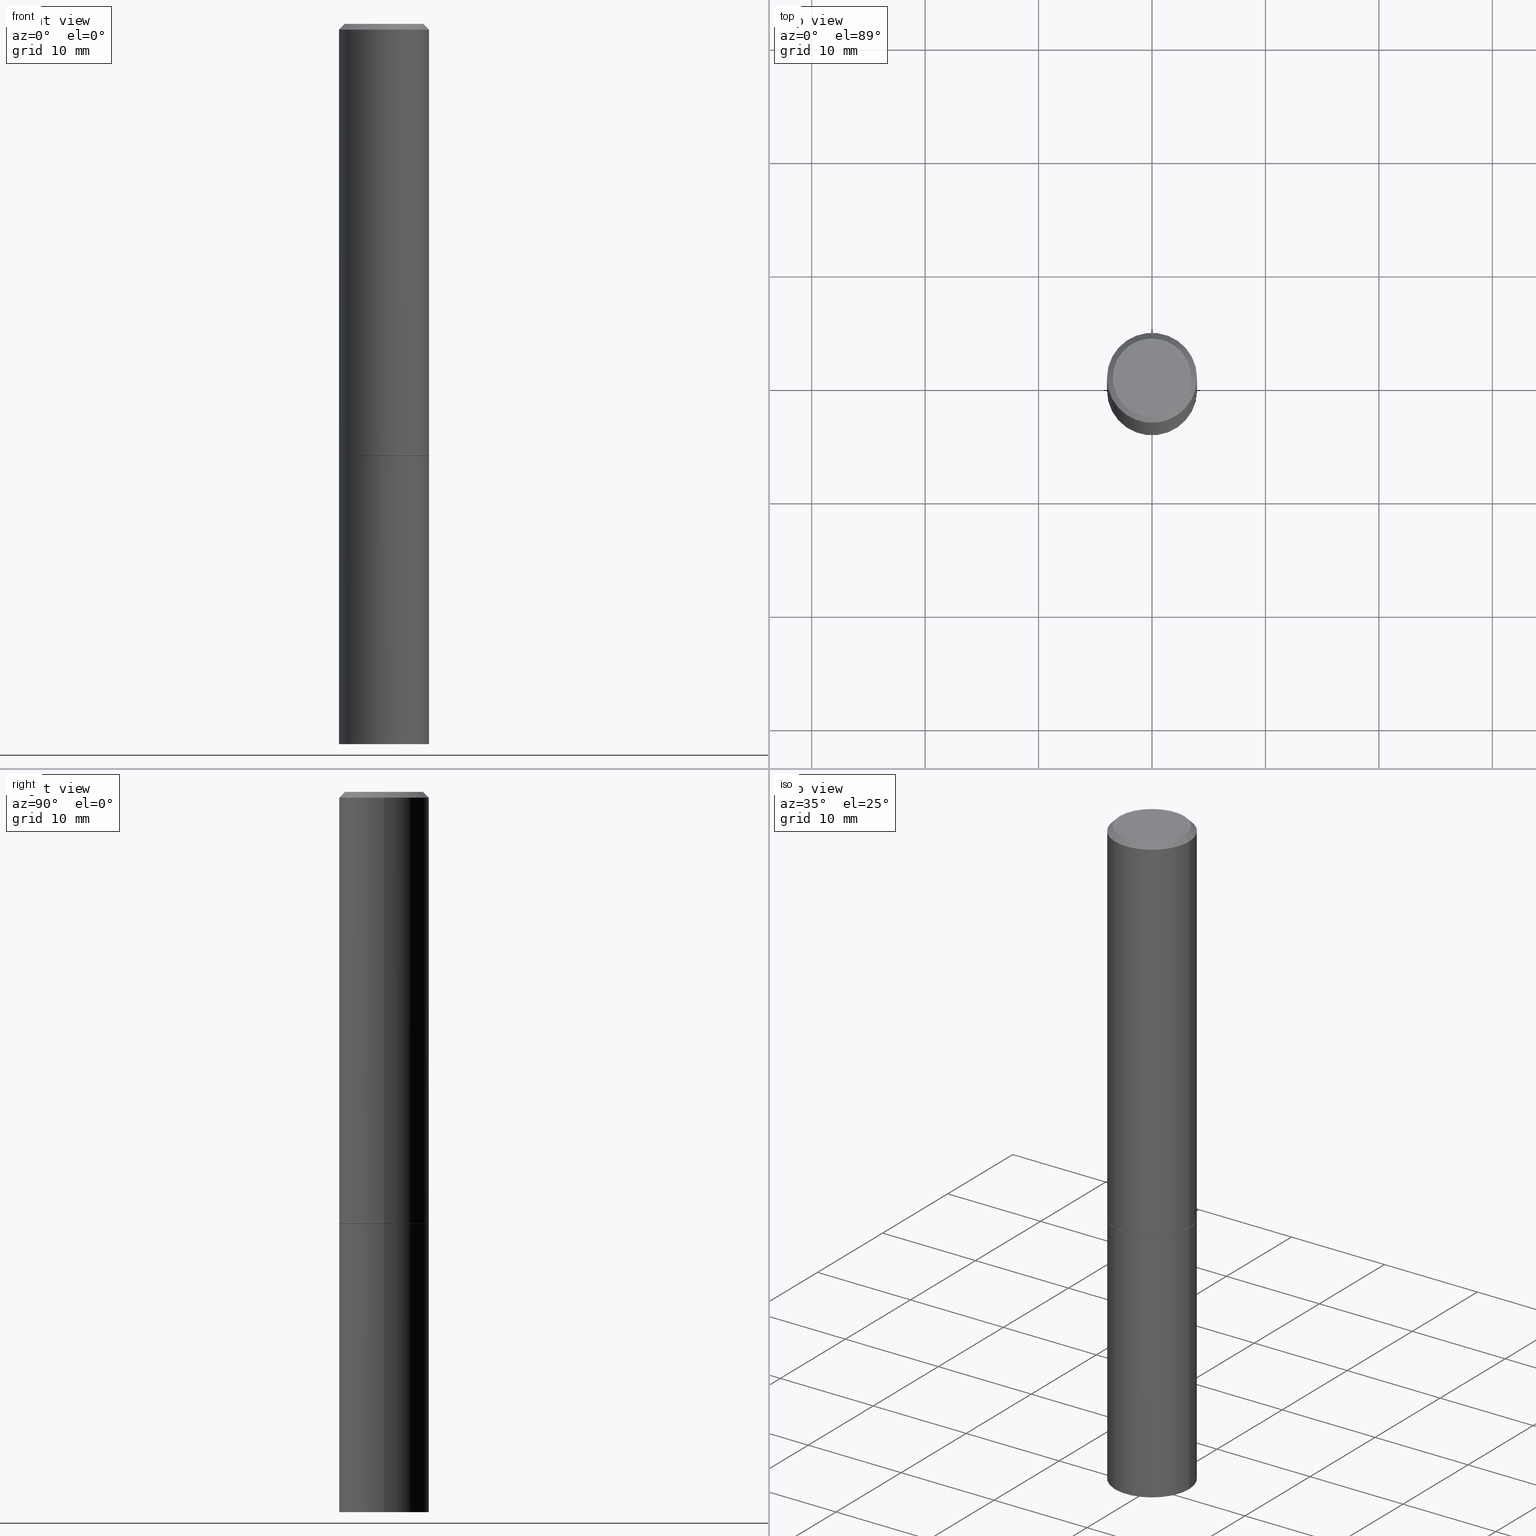
[diagram: canonical four-view strip — front | top / right | iso, engineering-drawing reading convention]
A machine part, canonical four-view strip (front | top / right | iso — engineering-drawing reading convention). The complete STEP part file that produces these views, byte-faithful:
ISO-10303-21;
HEADER;
FILE_DESCRIPTION (( 'STEP AP203' ),
    '1' );
FILE_NAME ('73073.STEP',
    '2024-02-29T07:31:50',
    ( '' ),
    ( '' ),
    'SwSTEP 2.0',
    'SolidWorks 2023',
    '' );
FILE_SCHEMA (( 'CONFIG_CONTROL_DESIGN' ));
ENDSEC;

DATA;
#1 = VERTEX_POINT ( 'NONE', #346 ) ;
#2 = CC_DESIGN_PERSON_AND_ORGANIZATION_ASSIGNMENT ( #260, #68, ( #338 ) ) ;
#3 = EDGE_LOOP ( 'NONE', ( #326, #222, #253, #218 ) ) ;
#4 = APPROVAL_DATE_TIME ( #10, #14 ) ;
#5 = CARTESIAN_POINT ( 'NONE',  ( 9.514286648347525771E-16, 0.1362499999999998435, -4.735800761723278502E-16 ) ) ;
#6 = DIRECTION ( 'NONE',  ( 1.000000000000000000, -6.982962677686269077E-15, 0.000000000000000000 ) ) ;
#7 = ADVANCED_FACE ( 'NONE', ( #261 ), #57, .T. ) ;
#8 = DATE_AND_TIME ( #145, #13 ) ;
#9 = DIRECTION ( 'NONE',  ( -2.445468806185136597E-29, 3.491481338843145583E-15, 1.000000000000000000 ) ) ;
#10 = DATE_AND_TIME ( #254, #220 ) ;
#11 = AXIS2_PLACEMENT_3D ( 'NONE', #133, #54, #356 ) ;
#12 = PLANE ( 'NONE',  #194 ) ;
#13 = LOCAL_TIME ( 2, 31, 50.00000000000000000, #34 ) ;
#14 = APPROVAL ( #232, 'UNSPECIFIED' ) ;
#15 = CARTESIAN_POINT ( 'NONE',  ( 1.091087918388540310E-15, 0.1562499999999912570, -2.500000000000000444 ) ) ;
#16 = LINE ( 'NONE', #134, #274 ) ;
#17 = CYLINDRICAL_SURFACE ( 'NONE', #240, 0.1562499999999999445 ) ;
#18 = CIRCLE ( 'NONE', #234, 0.1562500000000000000 ) ;
#19 = DIMENSIONAL_EXPONENTS ( 1.000000000000000000, 0.000000000000000000, 0.000000000000000000, 0.000000000000000000, 0.000000000000000000, 0.000000000000000000, 0.000000000000000000 ) ;
#20 = DIRECTION ( 'NONE',  ( -2.445468806185136597E-29, 3.491481338843145583E-15, 1.000000000000000000 ) ) ;
#21 = ADVANCED_FACE ( 'NONE', ( #352 ), #102, .T. ) ;
#22 = DIRECTION ( 'NONE',  ( -2.445468806185136597E-29, 3.491481338843145583E-15, 1.000000000000000000 ) ) ;
#23 = CIRCLE ( 'NONE', #176, 0.1562500000000000000 ) ;
#24 = EDGE_CURVE ( 'NONE', #267, #251, #115, .T. ) ;
#25 = LENGTH_MEASURE_WITH_UNIT ( LENGTH_MEASURE( 0.02539999999999999897 ), #113 );
#26 = ORIENTED_EDGE ( 'NONE', *, *, #246, .F. ) ;
#27 = VERTEX_POINT ( 'NONE', #154 ) ;
#28 = APPLICATION_CONTEXT ( 'configuration controlled 3d designs of mechanical parts and assemblies' ) ;
#29 = ORIENTED_EDGE ( 'NONE', *, *, #55, .F. ) ;
#30 = APPROVAL_PERSON_ORGANIZATION ( #202, #169, #90 ) ;
#31 =( NAMED_UNIT ( * ) SI_UNIT ( $, .STERADIAN. ) SOLID_ANGLE_UNIT ( ) );
#32 = ORIENTED_EDGE ( 'NONE', *, *, #316, .F. ) ;
#33 = EDGE_CURVE ( 'NONE', #337, #27, #182, .T. ) ;
#34 = COORDINATED_UNIVERSAL_TIME_OFFSET ( 5, 0, .BEHIND. ) ;
#35 = DATE_TIME_ROLE ( 'classification_date' ) ;
#36 = UNCERTAINTY_MEASURE_WITH_UNIT (LENGTH_MEASURE( 1.000000000000000082E-05 ), #87, 'distance_accuracy_value', 'NONE');
#37 = DIRECTION ( 'NONE',  ( -1.000000000000000000, 6.982962677686265922E-15, -4.876176775795935793E-29 ) ) ;
#38 = AXIS2_PLACEMENT_3D ( 'NONE', #228, #315, #174 ) ;
#39 = ADVANCED_FACE ( 'NONE', ( #285 ), #123, .T. ) ;
#40 = DATE_AND_TIME ( #204, #298 ) ;
#41 = LINE ( 'NONE', #47, #329 ) ;
#42 = APPROVAL_DATE_TIME ( #208, #140 ) ;
#43 = DIRECTION ( 'NONE',  ( 1.000000000000000000, -6.982962677686266711E-15, 4.876176775795936353E-29 ) ) ;
#44 = PERSON_AND_ORGANIZATION ( #100, #303 ) ;
#45 = CARTESIAN_POINT ( 'NONE',  ( 3.668203209277704335E-29, -5.237222008264717388E-15, -1.499999999999999778 ) ) ;
#46 = EDGE_CURVE ( 'NONE', #267, #333, #210, .T. ) ;
#47 = CARTESIAN_POINT ( 'NONE',  ( 0.1552499999999999991, -6.321326963975510547E-15, -1.499999999999999778 ) ) ;
#48 = DIRECTION ( 'NONE',  ( -2.445468806185136877E-29, 3.491481338843145188E-15, 1.000000000000000000 ) ) ;
#49 = DIRECTION ( 'NONE',  ( 1.000000000000000000, -6.982962677686269077E-15, 0.000000000000000000 ) ) ;
#50 = APPLICATION_CONTEXT ( 'configuration controlled 3d designs of mechanical parts and assemblies' ) ;
#51 = ADVANCED_FACE ( 'NONE', ( #150 ), #259, .T. ) ;
#52 = DIRECTION ( 'NONE',  ( -2.445468806185136597E-29, 3.491481338843145583E-15, 1.000000000000000000 ) ) ;
#53 = DIRECTION ( 'NONE',  ( -2.445468806185136597E-29, 3.491481338843145583E-15, 1.000000000000000000 ) ) ;
#54 = DIRECTION ( 'NONE',  ( -2.445468806185136597E-29, 3.491481338843145583E-15, 1.000000000000000000 ) ) ;
#55 = EDGE_CURVE ( 'NONE', #364, #337, #244, .T. ) ;
#56 = PRODUCT_DEFINITION_SHAPE ( 'NONE', 'NONE',  #338 ) ;
#57 = CONICAL_SURFACE ( 'NONE', #320, 0.1552499999999999991, 0.7853981633975507526 ) ;
#58 = ORIENTED_EDGE ( 'NONE', *, *, #98, .F. ) ;
#59 = AXIS2_PLACEMENT_3D ( 'NONE', #156, #77, #187 ) ;
#60 = VERTEX_POINT ( 'NONE', #72 ) ;
#61 = ORIENTED_EDGE ( 'NONE', *, *, #46, .T. ) ;
#62 = ADVANCED_FACE ( 'NONE', ( #290 ), #130, .T. ) ;
#63 = CIRCLE ( 'NONE', #103, 0.1552499999999999991 ) ;
#64 = VERTEX_POINT ( 'NONE', #313 ) ;
#65 = CARTESIAN_POINT ( 'NONE',  ( 0.000000000000000000, 0.000000000000000000, 0.000000000000000000 ) ) ;
#66 = PERSON_AND_ORGANIZATION_ROLE ( 'creator' ) ;
#67 = DIRECTION ( 'NONE',  ( -2.445468806185136597E-29, 3.491481338843145583E-15, 1.000000000000000000 ) ) ;
#68 = PERSON_AND_ORGANIZATION_ROLE ( 'creator' ) ;
#69 = PERSON_AND_ORGANIZATION ( #100, #303 ) ;
#70 = CARTESIAN_POINT ( 'NONE',  ( 3.665757740471519853E-29, -5.233730526925875958E-15, -1.499000000000000110 ) ) ;
#71 = PERSON_AND_ORGANIZATION ( #100, #303 ) ;
#72 = CARTESIAN_POINT ( 'NONE',  ( 0.1362499999999998435, -1.038262645562516941E-15, 4.268512490107368508E-18 ) ) ;
#73 = CLOSED_SHELL ( 'NONE', ( #229, #129, #305, #39 ) ) ;
#74 = AXIS2_PLACEMENT_3D ( 'NONE', #80, #299, #301 ) ;
#75 = DIRECTION ( 'NONE',  ( -2.445468806185136597E-29, 3.491481338843145583E-15, 1.000000000000000000 ) ) ;
#76 = DIRECTION ( 'NONE',  ( 1.000000000000000000, -6.982962677686268288E-15, 0.000000000000000000 ) ) ;
#77 = DIRECTION ( 'NONE',  ( 2.438088387897960049E-29, -3.491481338843145188E-15, -1.000000000000000000 ) ) ;
#78 = CARTESIAN_POINT ( 'NONE',  ( 0.1562499999999999445, -1.091087918388478779E-15, 7.619026212181146173E-30 ) ) ;
#79 = VECTOR ( 'NONE', #97, 39.37007874015748143 ) ;
#80 = CARTESIAN_POINT ( 'NONE',  ( 4.890937612370281041E-31, -6.982962677686302702E-17, -0.02000000000000003511 ) ) ;
#81 = CC_DESIGN_PERSON_AND_ORGANIZATION_ASSIGNMENT ( #178, #318, ( #309 ) ) ;
#82 = EDGE_LOOP ( 'NONE', ( #121, #159, #196, #304 ) ) ;
#83 = ORIENTED_EDGE ( 'NONE', *, *, #295, .F. ) ;
#84 = CC_DESIGN_APPROVAL ( #140, ( #338 ) ) ;
#85 = LINE ( 'NONE', #195, #322 ) ;
#86 = EDGE_LOOP ( 'NONE', ( #324, #106, #278, #363 ) ) ;
#87 =( CONVERSION_BASED_UNIT ( 'INCH', #25 ) LENGTH_UNIT ( ) NAMED_UNIT ( #19 ) );
#88 = EDGE_LOOP ( 'NONE', ( #197, #193, #83, #58 ) ) ;
#89 = ORIENTED_EDGE ( 'NONE', *, *, #283, .T. ) ;
#90 = APPROVAL_ROLE ( '' ) ;
#91 = LINE ( 'NONE', #201, #157 ) ;
#92 = APPROVAL_ROLE ( '' ) ;
#93 = DIRECTION ( 'NONE',  ( 2.438088387897960049E-29, -3.491481338843145188E-15, -1.000000000000000000 ) ) ;
#94 = COORDINATED_UNIVERSAL_TIME_OFFSET ( 5, 0, .BEHIND. ) ;
#95 = FACE_OUTER_BOUND ( 'NONE', #248, .T. ) ;
#96 = CIRCLE ( 'NONE', #360, 0.1562500000000000000 ) ;
#97 = DIRECTION ( 'NONE',  ( -0.7071067811865466846, 2.468850131082247989E-15, -0.7071067811865483499 ) ) ;
#98 = EDGE_CURVE ( 'NONE', #328, #251, #41, .T. ) ;
#99 = DIRECTION ( 'NONE',  ( -2.445468806185136597E-29, 3.491481338843145583E-15, 1.000000000000000000 ) ) ;
#100 = PERSON ( 'UNSPECIFIED', 'UNSPECIFIED', 'UNSPECIFIED', ('UNSPECIFIED'), ('UNSPECIFIED'), ('UNSPECIFIED') ) ;
#101 = DIRECTION ( 'NONE',  ( -2.438088387897960049E-29, 3.491481338843145188E-15, 1.000000000000000000 ) ) ;
#102 = CONICAL_SURFACE ( 'NONE', #153, 0.1552499999999999991, 0.7853981633975507526 ) ;
#103 = AXIS2_PLACEMENT_3D ( 'NONE', #325, #327, #76 ) ;
#104 = DIRECTION ( 'NONE',  ( -2.445468806185136597E-29, 3.491481338843145583E-15, 1.000000000000000000 ) ) ;
#105 = EDGE_CURVE ( 'NONE', #306, #60, #335, .T. ) ;
#106 = ORIENTED_EDGE ( 'NONE', *, *, #334, .T. ) ;
#107 = CARTESIAN_POINT ( 'NONE',  ( 0.1562500000000000000, -6.324818445314355132E-15, -1.499000000000000110 ) ) ;
#108 = DIRECTION ( 'NONE',  ( 1.000000000000000000, -6.982962677686265922E-15, 4.876176775795935793E-29 ) ) ;
#109 = CC_DESIGN_DATE_AND_TIME_ASSIGNMENT ( #8, #35, ( #309 ) ) ;
#110 = CLOSED_SHELL ( 'NONE', ( #7, #347, #235, #62, #51, #21, #183, #161 ) ) ;
#111 = CARTESIAN_POINT ( 'NONE',  ( 0.000000000000000000, 0.000000000000000000, 0.000000000000000000 ) ) ;
#112 = AXIS2_PLACEMENT_3D ( 'NONE', #265, #9, #128 ) ;
#113 =( LENGTH_UNIT ( ) NAMED_UNIT ( * ) SI_UNIT ( $, .METRE. ) );
#114 = ORIENTED_EDGE ( 'NONE', *, *, #295, .T. ) ;
#115 = CIRCLE ( 'NONE', #212, 0.1562500000000000000 ) ;
#116 = ORIENTED_EDGE ( 'NONE', *, *, #105, .F. ) ;
#117 = EDGE_CURVE ( 'NONE', #306, #333, #233, .T. ) ;
#118 = ORIENTED_EDGE ( 'NONE', *, *, #252, .F. ) ;
#119 = EDGE_LOOP ( 'NONE', ( #255, #164 ) ) ;
#120 = SHAPE_DEFINITION_REPRESENTATION ( #56, #181 ) ;
#121 = ORIENTED_EDGE ( 'NONE', *, *, #334, .F. ) ;
#122 = CC_DESIGN_SECURITY_CLASSIFICATION ( #309, ( #250 ) ) ;
#123 = CYLINDRICAL_SURFACE ( 'NONE', #359, 0.1562500000000000000 ) ;
#124 = APPLICATION_PROTOCOL_DEFINITION ( 'international standard', 'config_control_design', 1994, #28 ) ;
#125 = DIRECTION ( 'NONE',  ( 1.000000000000000000, -6.982962677686268288E-15, 0.000000000000000000 ) ) ;
#126 = PERSON_AND_ORGANIZATION ( #100, #303 ) ;
#127 = DESIGN_CONTEXT ( 'detailed design', #28, 'design' ) ;
#128 = DIRECTION ( 'NONE',  ( 1.000000000000000000, -6.982962677686266711E-15, 4.876388394912424373E-29 ) ) ;
#129 = ADVANCED_FACE ( 'NONE', ( #311 ), #12, .T. ) ;
#130 = CONICAL_SURFACE ( 'NONE', #38, 0.1562499999999998335, 0.7853981633974471688 ) ;
#131 = APPROVAL_DATE_TIME ( #40, #169 ) ;
#132 = DIRECTION ( 'NONE',  ( 2.438088387897960049E-29, -3.491481338843145188E-15, -1.000000000000000000 ) ) ;
#133 = CARTESIAN_POINT ( 'NONE',  ( 3.668203209277704895E-29, -5.237222008264718177E-15, -1.500000000000000222 ) ) ;
#134 = CARTESIAN_POINT ( 'NONE',  ( -0.1562500000000000000, 1.110223024625156540E-15, -7.685836078523291160E-30 ) ) ;
#135 = CIRCLE ( 'NONE', #184, 0.1552499999999999991 ) ;
#136 = CARTESIAN_POINT ( 'NONE',  ( 0.000000000000000000, 0.000000000000000000, 0.000000000000000000 ) ) ;
#137 = FACE_OUTER_BOUND ( 'NONE', #302, .T. ) ;
#138 = PLANE ( 'NONE',  #59 ) ;
#139 = AXIS2_PLACEMENT_3D ( 'NONE', #344, #146, #6 ) ;
#140 = APPROVAL ( #343, 'UNSPECIFIED' ) ;
#141 = ORIENTED_EDGE ( 'NONE', *, *, #209, .T. ) ;
#142 = AXIS2_PLACEMENT_3D ( 'NONE', #258, #284, #345 ) ;
#143 = ORIENTED_EDGE ( 'NONE', *, *, #291, .F. ) ;
#144 = CC_DESIGN_PERSON_AND_ORGANIZATION_ASSIGNMENT ( #69, #200, ( #250 ) ) ;
#145 = CALENDAR_DATE ( 2024, 29, 2 ) ;
#146 = DIRECTION ( 'NONE',  ( -2.445468806185136597E-29, 3.491481338843145583E-15, 1.000000000000000000 ) ) ;
#147 = APPROVAL_PERSON_ORGANIZATION ( #44, #140, #92 ) ;
#148 = CARTESIAN_POINT ( 'NONE',  ( 0.1562500000000000000, -1.091087918388479174E-15, 7.619026212181150377E-30 ) ) ;
#149 = SECURITY_CLASSIFICATION_LEVEL ( 'unclassified' ) ;
#150 = FACE_OUTER_BOUND ( 'NONE', #3, .T. ) ;
#151 = CALENDAR_DATE ( 2024, 29, 2 ) ;
#152 = DIRECTION ( 'NONE',  ( 0.7071067811866199593, -2.468850131083015945E-15, 0.7071067811864750752 ) ) ;
#153 = AXIS2_PLACEMENT_3D ( 'NONE', #45, #237, #287 ) ;
#154 = CARTESIAN_POINT ( 'NONE',  ( 0.1562500000000000000, -6.328309926653198139E-15, -1.500000000000000222 ) ) ;
#155 = CARTESIAN_POINT ( 'NONE',  ( 4.890937612370281041E-31, -6.982962677686302702E-17, -0.02000000000000003511 ) ) ;
#156 = CARTESIAN_POINT ( 'NONE',  ( 1.091087918388515658E-15, 0.1562499999999947820, -1.500000000000000666 ) ) ;
#157 = VECTOR ( 'NONE', #203, 39.37007874015748143 ) ;
#158 = PLANE ( 'NONE',  #189 ) ;
#159 = ORIENTED_EDGE ( 'NONE', *, *, #55, .T. ) ;
#160 = FACE_OUTER_BOUND ( 'NONE', #86, .T. ) ;
#161 = ADVANCED_FACE ( 'NONE', ( #257 ), #225, .F. ) ;
#162 = DIRECTION ( 'NONE',  ( 1.000000000000000000, -6.982962677686269077E-15, 0.000000000000000000 ) ) ;
#163 = CC_DESIGN_PERSON_AND_ORGANIZATION_ASSIGNMENT ( #71, #66, ( #250 ) ) ;
#164 = ORIENTED_EDGE ( 'NONE', *, *, #316, .T. ) ;
#165 = ORIENTED_EDGE ( 'NONE', *, *, #117, .T. ) ;
#166 = MANIFOLD_SOLID_BREP ( 'Body-Move/Copy2[1]', #73 ) ;
#167 = ORIENTED_EDGE ( 'NONE', *, *, #283, .F. ) ;
#168 = CIRCLE ( 'NONE', #11, 0.1562500000000000000 ) ;
#169 = APPROVAL ( #230, 'UNSPECIFIED' ) ;
#170 = DIRECTION ( 'NONE',  ( 1.000000000000000000, -6.982962677686266711E-15, 4.876176775795935232E-29 ) ) ;
#171 = VERTEX_POINT ( 'NONE', #342 ) ;
#172 = PRODUCT ( '73073', '73073', '', ( #227 ) ) ;
#173 = DATE_TIME_ROLE ( 'creation_date' ) ;
#174 = DIRECTION ( 'NONE',  ( -1.000000000000000000, 6.982962677686267499E-15, 0.000000000000000000 ) ) ;
#175 = DIRECTION ( 'NONE',  ( 1.000000000000000000, -6.982962677686266711E-15, 4.876176775795935232E-29 ) ) ;
#176 = AXIS2_PLACEMENT_3D ( 'NONE', #323, #358, #243 ) ;
#177 = EDGE_CURVE ( 'NONE', #60, #171, #91, .T. ) ;
#178 = PERSON_AND_ORGANIZATION ( #100, #303 ) ;
#179 = DIRECTION ( 'NONE',  ( -2.445468806185136877E-29, 3.491481338843145188E-15, 1.000000000000000000 ) ) ;
#180 = CARTESIAN_POINT ( 'NONE',  ( -0.1562499999999998335, 1.021258291611615086E-15, -0.02000000000000003511 ) ) ;
#181 = ADVANCED_BREP_SHAPE_REPRESENTATION ( '73073', ( #166, #297, #142 ), #365 ) ;
#182 = LINE ( 'NONE', #148, #354 ) ;
#183 = ADVANCED_FACE ( 'NONE', ( #95 ), #158, .F. ) ;
#184 = AXIS2_PLACEMENT_3D ( 'NONE', #271, #22, #270 ) ;
#185 = DIRECTION ( 'NONE',  ( 1.000000000000000000, -6.982962677686265133E-15, 0.000000000000000000 ) ) ;
#186 = CARTESIAN_POINT ( 'NONE',  ( 6.113672015462842613E-29, -8.728703347107864943E-15, -2.500000000000000000 ) ) ;
#187 = DIRECTION ( 'NONE',  ( -1.000000000000000000, 6.982962677686265922E-15, -4.876176775795935793E-29 ) ) ;
#188 = VECTOR ( 'NONE', #289, 39.37007874015748143 ) ;
#189 = AXIS2_PLACEMENT_3D ( 'NONE', #293, #101, #108 ) ;
#190 = PRODUCT_RELATED_PRODUCT_CATEGORY ( 'detail', '', ( #172 ) ) ;
#191 = DIRECTION ( 'NONE',  ( 1.000000000000000000, -6.982962677686266711E-15, 4.876176775795936353E-29 ) ) ;
#192 = CARTESIAN_POINT ( 'NONE',  ( -0.1562500000000000000, -1.541557052226212102E-15, -1.499000000000000110 ) ) ;
#193 = ORIENTED_EDGE ( 'NONE', *, *, #357, .T. ) ;
#194 = AXIS2_PLACEMENT_3D ( 'NONE', #15, #132, #37 ) ;
#195 = CARTESIAN_POINT ( 'NONE',  ( -0.1552499999999999991, -4.134104410997161856E-15, -1.499999999999999778 ) ) ;
#196 = ORIENTED_EDGE ( 'NONE', *, *, #33, .T. ) ;
#197 = ORIENTED_EDGE ( 'NONE', *, *, #246, .T. ) ;
#198 = ORIENTED_EDGE ( 'NONE', *, *, #330, .T. ) ;
#199 = AXIS2_PLACEMENT_3D ( 'NONE', #211, #52, #296 ) ;
#200 = PERSON_AND_ORGANIZATION_ROLE ( 'design_supplier' ) ;
#201 = CARTESIAN_POINT ( 'NONE',  ( 0.1562499999999998335, -1.141782438928663724E-15, -0.02000000000000003511 ) ) ;
#202 = PERSON_AND_ORGANIZATION ( #100, #303 ) ;
#203 = DIRECTION ( 'NONE',  ( 0.7071067811865466846, -7.319954787623252890E-15, -0.7071067811865483499 ) ) ;
#204 = CALENDAR_DATE ( 2024, 29, 2 ) ;
#205 = DIRECTION ( 'NONE',  ( -2.445468806185136597E-29, 3.491481338843145583E-15, 1.000000000000000000 ) ) ;
#206 = PERSON_AND_ORGANIZATION ( #100, #303 ) ;
#207 = CARTESIAN_POINT ( 'NONE',  ( 0.000000000000000000, 0.000000000000000000, 0.000000000000000000 ) ) ;
#208 = DATE_AND_TIME ( #151, #355 ) ;
#209 = EDGE_CURVE ( 'NONE', #27, #64, #168, .T. ) ;
#210 = LINE ( 'NONE', #319, #188 ) ;
#211 = CARTESIAN_POINT ( 'NONE',  ( -1.043851414335219820E-46, 1.490343170380447200E-32, 4.268512490100411279E-18 ) ) ;
#212 = AXIS2_PLACEMENT_3D ( 'NONE', #70, #99, #350 ) ;
#213 = CARTESIAN_POINT ( 'NONE',  ( 0.1562500000000000000, -9.819791265496344905E-15, -2.500000000000000000 ) ) ;
#214 = DIRECTION ( 'NONE',  ( 1.000000000000000000, -6.982962677686265133E-15, 0.000000000000000000 ) ) ;
#215 = CYLINDRICAL_SURFACE ( 'NONE', #216, 0.1562500000000000000 ) ;
#216 = AXIS2_PLACEMENT_3D ( 'NONE', #111, #242, #191 ) ;
#217 = FACE_OUTER_BOUND ( 'NONE', #310, .T. ) ;
#218 = ORIENTED_EDGE ( 'NONE', *, *, #272, .F. ) ;
#219 = CIRCLE ( 'NONE', #199, 0.1362499999999998435 ) ;
#220 = LOCAL_TIME ( 2, 31, 50.00000000000000000, #312 ) ;
#221 = ORIENTED_EDGE ( 'NONE', *, *, #330, .F. ) ;
#222 = ORIENTED_EDGE ( 'NONE', *, *, #24, .T. ) ;
#223 = EDGE_CURVE ( 'NONE', #64, #27, #23, .T. ) ;
#224 = EDGE_LOOP ( 'NONE', ( #143, #29 ) ) ;
#225 = PLANE ( 'NONE',  #245 ) ;
#226 = AXIS2_PLACEMENT_3D ( 'NONE', #65, #67, #175 ) ;
#227 = MECHANICAL_CONTEXT ( 'NONE', #50, 'mechanical' ) ;
#228 = CARTESIAN_POINT ( 'NONE',  ( 4.890937612370281041E-31, -6.982962677686302702E-17, -0.02000000000000003511 ) ) ;
#229 = ADVANCED_FACE ( 'NONE', ( #160 ), #215, .T. ) ;
#230 = APPROVAL_STATUS ( 'not_yet_approved' ) ;
#231 = DIRECTION ( 'NONE',  ( -1.000000000000000000, 6.982962677686265922E-15, -4.876176775795935793E-29 ) ) ;
#232 = APPROVAL_STATUS ( 'not_yet_approved' ) ;
#233 = LINE ( 'NONE', #180, #79 ) ;
#234 = AXIS2_PLACEMENT_3D ( 'NONE', #186, #104, #162 ) ;
#235 = ADVANCED_FACE ( 'NONE', ( #217 ), #269, .T. ) ;
#236 = APPLICATION_PROTOCOL_DEFINITION ( 'international standard', 'config_control_design', 1994, #50 ) ;
#237 = DIRECTION ( 'NONE',  ( -2.445468806185136597E-29, 3.491481338843145583E-15, 1.000000000000000000 ) ) ;
#238 = FACE_OUTER_BOUND ( 'NONE', #276, .T. ) ;
#239 = DIRECTION ( 'NONE',  ( -2.445468806185136877E-29, 3.491481338843145188E-15, 1.000000000000000000 ) ) ;
#240 = AXIS2_PLACEMENT_3D ( 'NONE', #136, #241, #170 ) ;
#241 = DIRECTION ( 'NONE',  ( -2.445468806185136597E-29, 3.491481338843145583E-15, 1.000000000000000000 ) ) ;
#242 = DIRECTION ( 'NONE',  ( -2.445468806185136597E-29, 3.491481338843145583E-15, 1.000000000000000000 ) ) ;
#243 = DIRECTION ( 'NONE',  ( 1.000000000000000000, -6.982962677686269077E-15, 0.000000000000000000 ) ) ;
#244 = CIRCLE ( 'NONE', #139, 0.1562500000000000000 ) ;
#245 = AXIS2_PLACEMENT_3D ( 'NONE', #5, #93, #231 ) ;
#246 = EDGE_CURVE ( 'NONE', #328, #1, #63, .T. ) ;
#247 =( NAMED_UNIT ( * ) PLANE_ANGLE_UNIT ( ) SI_UNIT ( $, .RADIAN. ) );
#248 = EDGE_LOOP ( 'NONE', ( #26, #167 ) ) ;
#249 = ORIENTED_EDGE ( 'NONE', *, *, #357, .F. ) ;
#250 = PRODUCT_DEFINITION_FORMATION_WITH_SPECIFIED_SOURCE ( 'ANY', '', #172, .NOT_KNOWN. ) ;
#251 = VERTEX_POINT ( 'NONE', #107 ) ;
#252 = EDGE_CURVE ( 'NONE', #251, #171, #331, .T. ) ;
#253 = ORIENTED_EDGE ( 'NONE', *, *, #252, .T. ) ;
#254 = CALENDAR_DATE ( 2024, 29, 2 ) ;
#255 = ORIENTED_EDGE ( 'NONE', *, *, #105, .T. ) ;
#256 = COORDINATED_UNIVERSAL_TIME_OFFSET ( 5, 0, .BEHIND. ) ;
#257 = FACE_OUTER_BOUND ( 'NONE', #119, .T. ) ;
#258 = CARTESIAN_POINT ( 'NONE',  ( 0.000000000000000000, 0.000000000000000000, 0.000000000000000000 ) ) ;
#259 = CYLINDRICAL_SURFACE ( 'NONE', #226, 0.1562499999999999445 ) ;
#260 = PERSON_AND_ORGANIZATION ( #100, #303 ) ;
#261 = FACE_OUTER_BOUND ( 'NONE', #88, .T. ) ;
#262 = CIRCLE ( 'NONE', #340, 0.1562499999999998335 ) ;
#263 = CC_DESIGN_APPROVAL ( #14, ( #309 ) ) ;
#264 = CC_DESIGN_PERSON_AND_ORGANIZATION_ASSIGNMENT ( #206, #351, ( #172 ) ) ;
#265 = CARTESIAN_POINT ( 'NONE',  ( -1.043851414335219820E-46, 1.490343170380447200E-32, 4.268512490100411279E-18 ) ) ;
#266 = CARTESIAN_POINT ( 'NONE',  ( -0.1562499999999998335, 1.021258291611615086E-15, -0.02000000000000003511 ) ) ;
#267 = VERTEX_POINT ( 'NONE', #192 ) ;
#268 = CARTESIAN_POINT ( 'NONE',  ( 4.890937612370281041E-31, -6.982962677686302702E-17, -0.02000000000000003511 ) ) ;
#269 = CONICAL_SURFACE ( 'NONE', #74, 0.1562499999999998335, 0.7853981633974471688 ) ;
#270 = DIRECTION ( 'NONE',  ( 1.000000000000000000, -6.982962677686268288E-15, 0.000000000000000000 ) ) ;
#271 = CARTESIAN_POINT ( 'NONE',  ( 3.668203209277704335E-29, -5.237222008264717388E-15, -1.499999999999999778 ) ) ;
#272 = EDGE_CURVE ( 'NONE', #333, #171, #262, .T. ) ;
#273 = CARTESIAN_POINT ( 'NONE',  ( 3.665757740471519853E-29, -5.233730526925875958E-15, -1.499000000000000110 ) ) ;
#274 = VECTOR ( 'NONE', #239, 39.37007874015748143 ) ;
#275 = CIRCLE ( 'NONE', #314, 0.1562499999999998335 ) ;
#276 = EDGE_LOOP ( 'NONE', ( #141, #307 ) ) ;
#277 = ORIENTED_EDGE ( 'NONE', *, *, #272, .T. ) ;
#278 = ORIENTED_EDGE ( 'NONE', *, *, #209, .F. ) ;
#279 = APPROVAL_PERSON_ORGANIZATION ( #126, #14, #348 ) ;
#280 = ORIENTED_EDGE ( 'NONE', *, *, #98, .T. ) ;
#281 = DATE_AND_TIME ( #288, #286 ) ;
#282 = ORIENTED_EDGE ( 'NONE', *, *, #177, .T. ) ;
#283 = EDGE_CURVE ( 'NONE', #1, #328, #135, .T. ) ;
#284 = DIRECTION ( 'NONE',  ( 0.000000000000000000, 0.000000000000000000, 1.000000000000000000 ) ) ;
#285 = FACE_OUTER_BOUND ( 'NONE', #82, .T. ) ;
#286 = LOCAL_TIME ( 2, 31, 50.00000000000000000, #341 ) ;
#287 = DIRECTION ( 'NONE',  ( 1.000000000000000000, -6.982962677686268288E-15, 0.000000000000000000 ) ) ;
#288 = CALENDAR_DATE ( 2024, 29, 2 ) ;
#289 = DIRECTION ( 'NONE',  ( -2.445468806185136877E-29, 3.491481338843145188E-15, 1.000000000000000000 ) ) ;
#290 = FACE_OUTER_BOUND ( 'NONE', #332, .T. ) ;
#291 = EDGE_CURVE ( 'NONE', #337, #364, #18, .T. ) ;
#292 = DIRECTION ( 'NONE',  ( -2.445468806185136597E-29, 3.491481338843145583E-15, 1.000000000000000000 ) ) ;
#293 = CARTESIAN_POINT ( 'NONE',  ( 3.668203209277704335E-29, -5.237222008264717388E-15, -1.499999999999999778 ) ) ;
#294 = ORIENTED_EDGE ( 'NONE', *, *, #117, .F. ) ;
#295 = EDGE_CURVE ( 'NONE', #251, #267, #96, .T. ) ;
#296 = DIRECTION ( 'NONE',  ( 1.000000000000000000, -6.982962677686266711E-15, 4.876388394912424373E-29 ) ) ;
#297 = MANIFOLD_SOLID_BREP ( 'Body-Move/Copy2[2]', #110 ) ;
#298 = LOCAL_TIME ( 2, 31, 50.00000000000000000, #94 ) ;
#299 = DIRECTION ( 'NONE',  ( 2.445468806185136597E-29, -3.491481338843145583E-15, -1.000000000000000000 ) ) ;
#300 = CC_DESIGN_DATE_AND_TIME_ASSIGNMENT ( #281, #173, ( #338 ) ) ;
#301 = DIRECTION ( 'NONE',  ( -1.000000000000000000, 6.982962677686267499E-15, 0.000000000000000000 ) ) ;
#302 = EDGE_LOOP ( 'NONE', ( #114, #61, #221, #118 ) ) ;
#303 = ORGANIZATION ( 'UNSPECIFIED', 'UNSPECIFIED', '' ) ;
#304 = ORIENTED_EDGE ( 'NONE', *, *, #223, .F. ) ;
#305 = ADVANCED_FACE ( 'NONE', ( #238 ), #138, .F. ) ;
#306 = VERTEX_POINT ( 'NONE', #353 ) ;
#307 = ORIENTED_EDGE ( 'NONE', *, *, #223, .T. ) ;
#308 = VECTOR ( 'NONE', #48, 39.37007874015748143 ) ;
#309 = SECURITY_CLASSIFICATION ( '', '', #149 ) ;
#310 = EDGE_LOOP ( 'NONE', ( #32, #282, #198, #294 ) ) ;
#311 = FACE_OUTER_BOUND ( 'NONE', #224, .T. ) ;
#312 = COORDINATED_UNIVERSAL_TIME_OFFSET ( 5, 0, .BEHIND. ) ;
#313 = CARTESIAN_POINT ( 'NONE',  ( -0.1562500000000000000, -5.872739653061135414E-15, -1.500000000000000222 ) ) ;
#314 = AXIS2_PLACEMENT_3D ( 'NONE', #268, #75, #185 ) ;
#315 = DIRECTION ( 'NONE',  ( 2.445468806185136597E-29, -3.491481338843145583E-15, -1.000000000000000000 ) ) ;
#316 = EDGE_CURVE ( 'NONE', #60, #306, #219, .T. ) ;
#317 = CARTESIAN_POINT ( 'NONE',  ( 3.668203209277704335E-29, -5.237222008264717388E-15, -1.499999999999999778 ) ) ;
#318 = PERSON_AND_ORGANIZATION_ROLE ( 'classification_officer' ) ;
#319 = CARTESIAN_POINT ( 'NONE',  ( -0.1562499999999999445, 1.110223024625156146E-15, -7.685836078523286956E-30 ) ) ;
#320 = AXIS2_PLACEMENT_3D ( 'NONE', #317, #205, #125 ) ;
#321 = CARTESIAN_POINT ( 'NONE',  ( 0.1552499999999999991, -6.321326963975510547E-15, -1.499999999999999778 ) ) ;
#322 = VECTOR ( 'NONE', #366, 39.37007874015748143 ) ;
#323 = CARTESIAN_POINT ( 'NONE',  ( 3.668203209277704895E-29, -5.237222008264718177E-15, -1.500000000000000222 ) ) ;
#324 = ORIENTED_EDGE ( 'NONE', *, *, #291, .T. ) ;
#325 = CARTESIAN_POINT ( 'NONE',  ( 3.668203209277704335E-29, -5.237222008264717388E-15, -1.499999999999999778 ) ) ;
#326 = ORIENTED_EDGE ( 'NONE', *, *, #46, .F. ) ;
#327 = DIRECTION ( 'NONE',  ( -2.445468806185136597E-29, 3.491481338843145583E-15, 1.000000000000000000 ) ) ;
#328 = VERTEX_POINT ( 'NONE', #321 ) ;
#329 = VECTOR ( 'NONE', #152, 39.37007874015748143 ) ;
#330 = EDGE_CURVE ( 'NONE', #171, #333, #275, .T. ) ;
#331 = LINE ( 'NONE', #78, #308 ) ;
#332 = EDGE_LOOP ( 'NONE', ( #362, #116, #165, #277 ) ) ;
#333 = VERTEX_POINT ( 'NONE', #266 ) ;
#334 = EDGE_CURVE ( 'NONE', #364, #64, #16, .T. ) ;
#335 = CIRCLE ( 'NONE', #112, 0.1362499999999998435 ) ;
#336 = ORIENTED_EDGE ( 'NONE', *, *, #24, .F. ) ;
#337 = VERTEX_POINT ( 'NONE', #213 ) ;
#338 = PRODUCT_DEFINITION ( 'UNKNOWN', '', #250, #127 ) ;
#339 = EDGE_LOOP ( 'NONE', ( #249, #89, #280, #336 ) ) ;
#340 = AXIS2_PLACEMENT_3D ( 'NONE', #155, #53, #214 ) ;
#341 = COORDINATED_UNIVERSAL_TIME_OFFSET ( 5, 0, .BEHIND. ) ;
#342 = CARTESIAN_POINT ( 'NONE',  ( 0.1562499999999998335, -1.141782438928663724E-15, -0.02000000000000003511 ) ) ;
#343 = APPROVAL_STATUS ( 'not_yet_approved' ) ;
#344 = CARTESIAN_POINT ( 'NONE',  ( 6.113672015462842613E-29, -8.728703347107864943E-15, -2.500000000000000000 ) ) ;
#345 = DIRECTION ( 'NONE',  ( 1.000000000000000000, 0.000000000000000000, 0.000000000000000000 ) ) ;
#346 = CARTESIAN_POINT ( 'NONE',  ( -0.1552499999999999991, -4.128805956648940242E-15, -1.499999999999999778 ) ) ;
#347 = ADVANCED_FACE ( 'NONE', ( #137 ), #17, .T. ) ;
#348 = APPROVAL_ROLE ( '' ) ;
#349 = CC_DESIGN_APPROVAL ( #169, ( #250 ) ) ;
#350 = DIRECTION ( 'NONE',  ( 1.000000000000000000, -6.982962677686269077E-15, 0.000000000000000000 ) ) ;
#351 = PERSON_AND_ORGANIZATION_ROLE ( 'design_owner' ) ;
#352 = FACE_OUTER_BOUND ( 'NONE', #339, .T. ) ;
#353 = CARTESIAN_POINT ( 'NONE',  ( -0.1362499999999998435, 9.863434782231838318E-16, 4.268512490093635087E-18 ) ) ;
#354 = VECTOR ( 'NONE', #179, 39.37007874015748143 ) ;
#355 = LOCAL_TIME ( 2, 31, 50.00000000000000000, #256 ) ;
#356 = DIRECTION ( 'NONE',  ( 1.000000000000000000, -6.982962677686269077E-15, 0.000000000000000000 ) ) ;
#357 = EDGE_CURVE ( 'NONE', #1, #267, #85, .T. ) ;
#358 = DIRECTION ( 'NONE',  ( -2.445468806185136597E-29, 3.491481338843145583E-15, 1.000000000000000000 ) ) ;
#359 = AXIS2_PLACEMENT_3D ( 'NONE', #207, #292, #43 ) ;
#360 = AXIS2_PLACEMENT_3D ( 'NONE', #273, #20, #49 ) ;
#361 = CARTESIAN_POINT ( 'NONE',  ( -0.1562500000000000000, -5.872739653061135414E-15, -2.500000000000000000 ) ) ;
#362 = ORIENTED_EDGE ( 'NONE', *, *, #177, .F. ) ;
#363 = ORIENTED_EDGE ( 'NONE', *, *, #33, .F. ) ;
#364 = VERTEX_POINT ( 'NONE', #361 ) ;
#365 =( GEOMETRIC_REPRESENTATION_CONTEXT ( 3 ) GLOBAL_UNCERTAINTY_ASSIGNED_CONTEXT ( ( #36 ) ) GLOBAL_UNIT_ASSIGNED_CONTEXT ( ( #87, #247, #31 ) ) REPRESENTATION_CONTEXT ( 'NONE', 'WORKASPACE' ) );
#366 = DIRECTION ( 'NONE',  ( -0.7071067811866199593, 7.493145998870616062E-15, 0.7071067811864750752 ) ) ;
ENDSEC;
END-ISO-10303-21;
